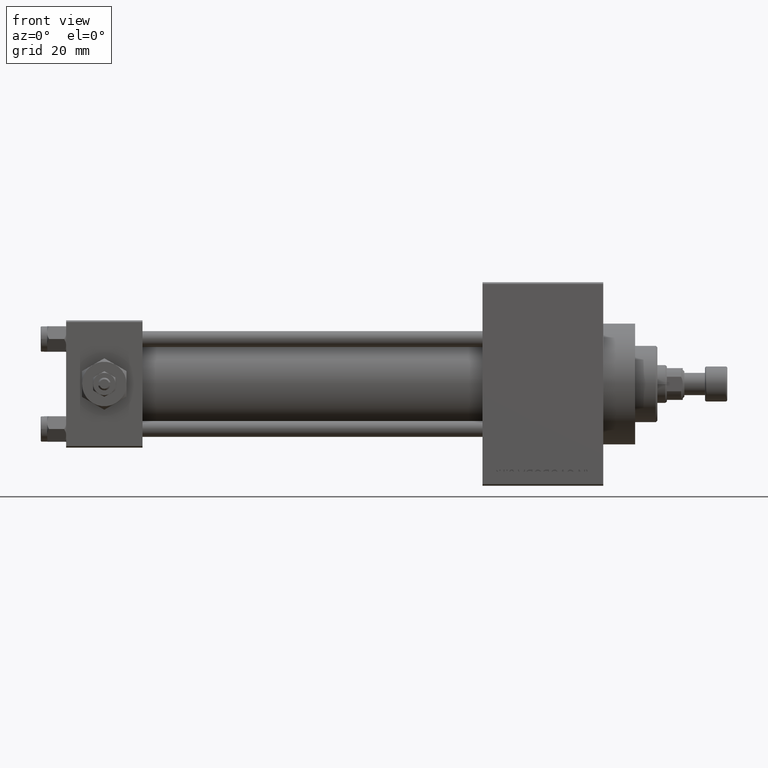
[diagram: clean part render]
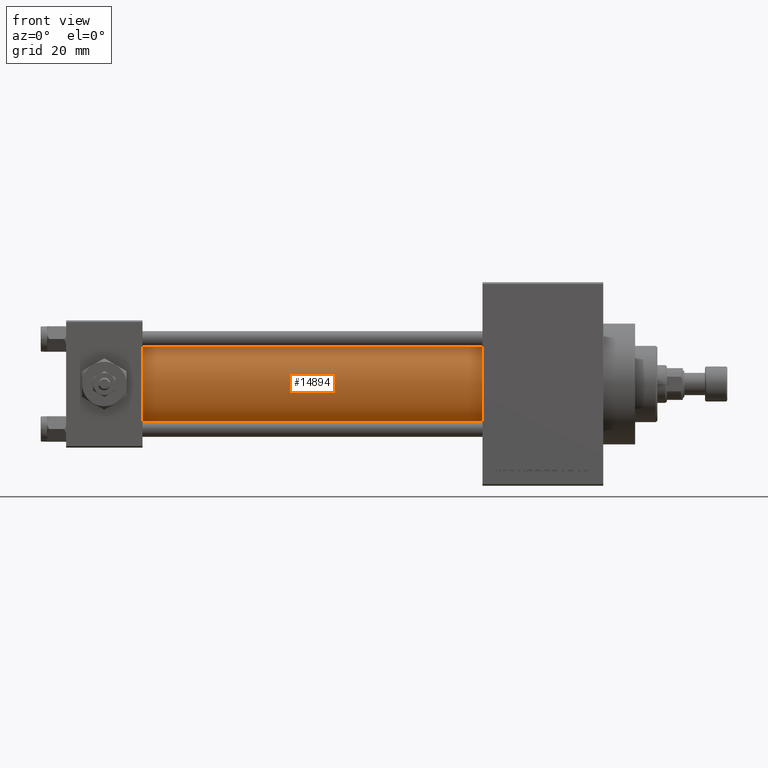
[diagram: same view with one face highlighted and labeled with its STEP entity id]
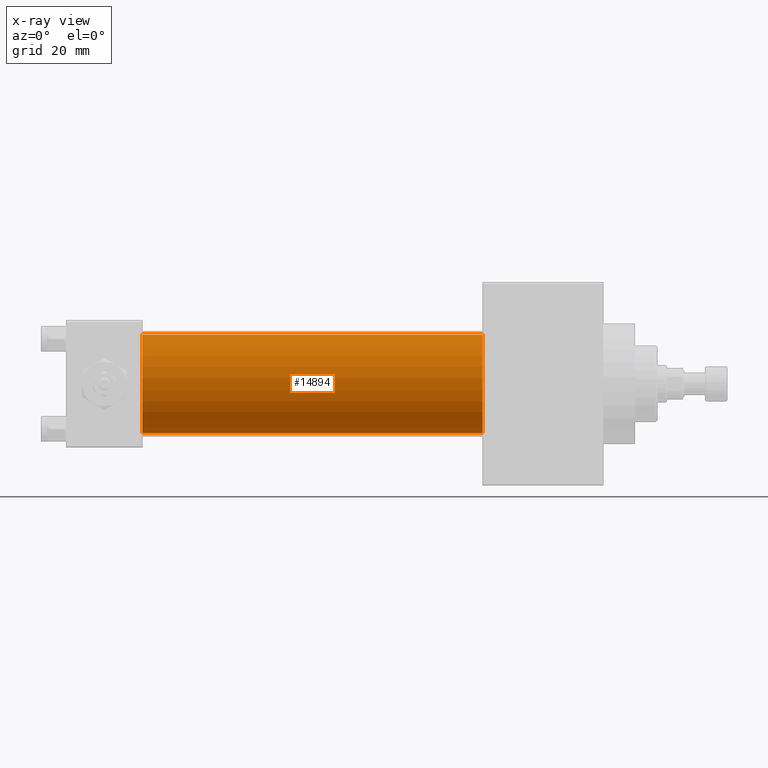
[diagram: x-ray of the same camera — body ghosted, the highlighted face saturated]
A machine part, front view. The second image highlights one B-rep face of the part: STEP entity #14894.
The next image is the same camera in x-ray: the body ghosted, the highlighted face saturated — about 0% of this face is hidden behind the body in this view.
In plain terms, the highlighted cylindrical surface (partial cylindrical patch) has radius 15.5 mm, axis along (-1, -0, -0).
Its self-contained STEP definition (entity closure, byte-faithful):
#310 = CIRCLE ( 'NONE', #27343, 15.50000000000000000 ) ;
#866 = EDGE_LOOP ( 'NONE', ( #43862, #16634, #11344, #7086 ) ) ;
#2138 = EDGE_CURVE ( 'NONE', #26362, #21095, #27368, .T. ) ;
#5553 = CARTESIAN_POINT ( 'NONE',  ( 23.99999999999999289, -2.602085213965210642E-15, 15.50000000000000000 ) ) ;
#6933 = VERTEX_POINT ( 'NONE', #31795 ) ;
#7086 = ORIENTED_EDGE ( 'NONE', *, *, #14111, .T. ) ;
#7650 = CARTESIAN_POINT ( 'NONE',  ( 23.99999999999999289, -7.038826752868131828E-16, -15.50000000000000000 ) ) ;
#8396 = DIRECTION ( 'NONE',  ( 1.000000000000000000, 0.000000000000000000, 0.000000000000000000 ) ) ;
#9303 = LINE ( 'NONE', #24521, #44774 ) ;
#11344 = ORIENTED_EDGE ( 'NONE', *, *, #2138, .T. ) ;
#11909 = EDGE_CURVE ( 'NONE', #6933, #47399, #9303, .T. ) ;
#12655 = CARTESIAN_POINT ( 'NONE',  ( 131.0000000000000000, -2.602085213965210642E-15, 15.50000000000000000 ) ) ;
#13676 = DIRECTION ( 'NONE',  ( -1.000000000000000000, -0.000000000000000000, -0.000000000000000000 ) ) ;
#14111 = EDGE_CURVE ( 'NONE', #21095, #47399, #33713, .T. ) ;
#14634 = AXIS2_PLACEMENT_3D ( 'NONE', #17190, #13676, #28871 ) ;
#14894 = ADVANCED_FACE ( 'NONE', ( #47770 ), #48272, .T. ) ;
#15636 = DIRECTION ( 'NONE',  ( 0.000000000000000000, 0.000000000000000000, -1.000000000000000000 ) ) ;
#16631 = CARTESIAN_POINT ( 'NONE',  ( 23.99999999999999289, -2.602085213965210642E-15, 0.000000000000000000 ) ) ;
#16634 = ORIENTED_EDGE ( 'NONE', *, *, #39288, .F. ) ;
#17190 = CARTESIAN_POINT ( 'NONE',  ( 131.0000000000000000, -2.602085213965210642E-15, 0.000000000000000000 ) ) ;
#19150 = DIRECTION ( 'NONE',  ( -1.000000000000000000, -0.000000000000000000, -0.000000000000000000 ) ) ;
#20123 = DIRECTION ( 'NONE',  ( 0.000000000000000000, 0.000000000000000000, 1.000000000000000000 ) ) ;
#20371 = DIRECTION ( 'NONE',  ( 1.000000000000000000, 0.000000000000000000, 0.000000000000000000 ) ) ;
#21095 = VERTEX_POINT ( 'NONE', #5553 ) ;
#24521 = CARTESIAN_POINT ( 'NONE',  ( 131.0000000000000000, -7.038826752868131828E-16, -15.50000000000000000 ) ) ;
#26362 = VERTEX_POINT ( 'NONE', #12655 ) ;
#27343 = AXIS2_PLACEMENT_3D ( 'NONE', #27588, #8396, #15636 ) ;
#27368 = LINE ( 'NONE', #38310, #33395 ) ;
#27588 = CARTESIAN_POINT ( 'NONE',  ( 131.0000000000000000, -2.602085213965210642E-15, 0.000000000000000000 ) ) ;
#28871 = DIRECTION ( 'NONE',  ( 0.000000000000000000, 0.000000000000000000, 1.000000000000000000 ) ) ;
#31795 = CARTESIAN_POINT ( 'NONE',  ( 131.0000000000000000, -7.038826752868131828E-16, -15.50000000000000000 ) ) ;
#33395 = VECTOR ( 'NONE', #19150, 1000.000000000000000 ) ;
#33713 = CIRCLE ( 'NONE', #36914, 15.50000000000000000 ) ;
#36914 = AXIS2_PLACEMENT_3D ( 'NONE', #16631, #20371, #20123 ) ;
#38310 = CARTESIAN_POINT ( 'NONE',  ( 131.0000000000000000, -2.602085213965210642E-15, 15.50000000000000000 ) ) ;
#39288 = EDGE_CURVE ( 'NONE', #26362, #6933, #310, .T. ) ;
#43862 = ORIENTED_EDGE ( 'NONE', *, *, #11909, .F. ) ;
#44774 = VECTOR ( 'NONE', #46909, 1000.000000000000000 ) ;
#46909 = DIRECTION ( 'NONE',  ( -1.000000000000000000, -0.000000000000000000, -0.000000000000000000 ) ) ;
#47399 = VERTEX_POINT ( 'NONE', #7650 ) ;
#47770 = FACE_OUTER_BOUND ( 'NONE', #866, .T. ) ;
#48272 = CYLINDRICAL_SURFACE ( 'NONE', #14634, 15.50000000000000000 ) ;